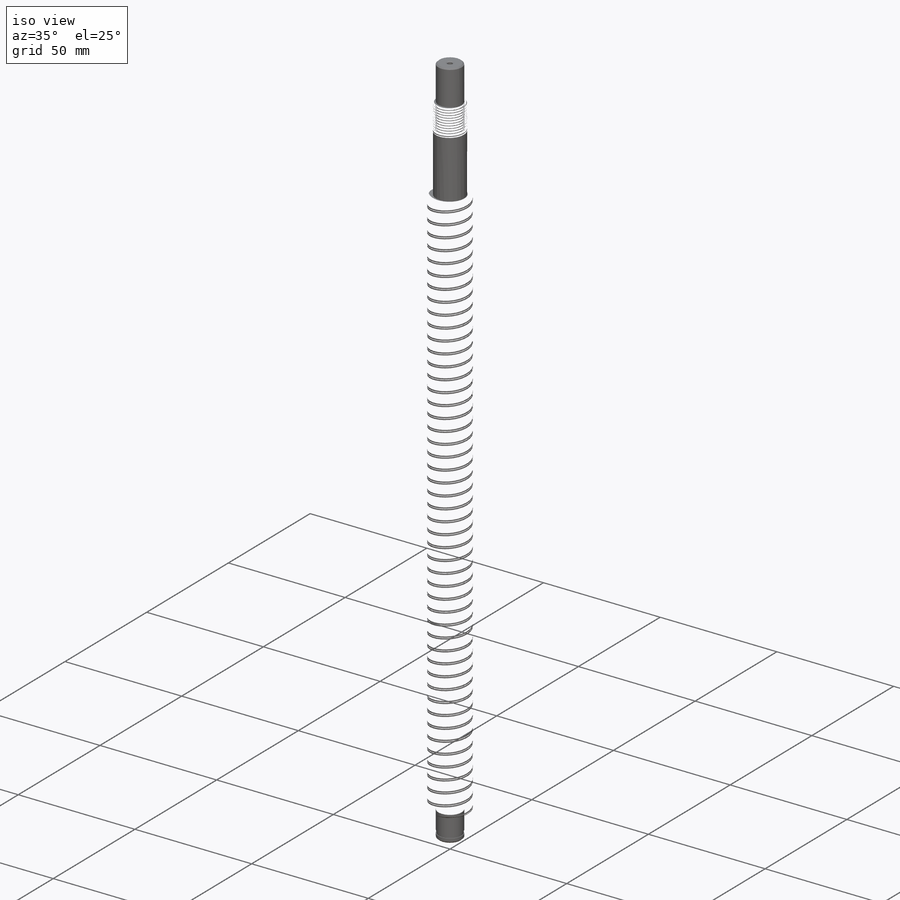
[diagram: iso view]
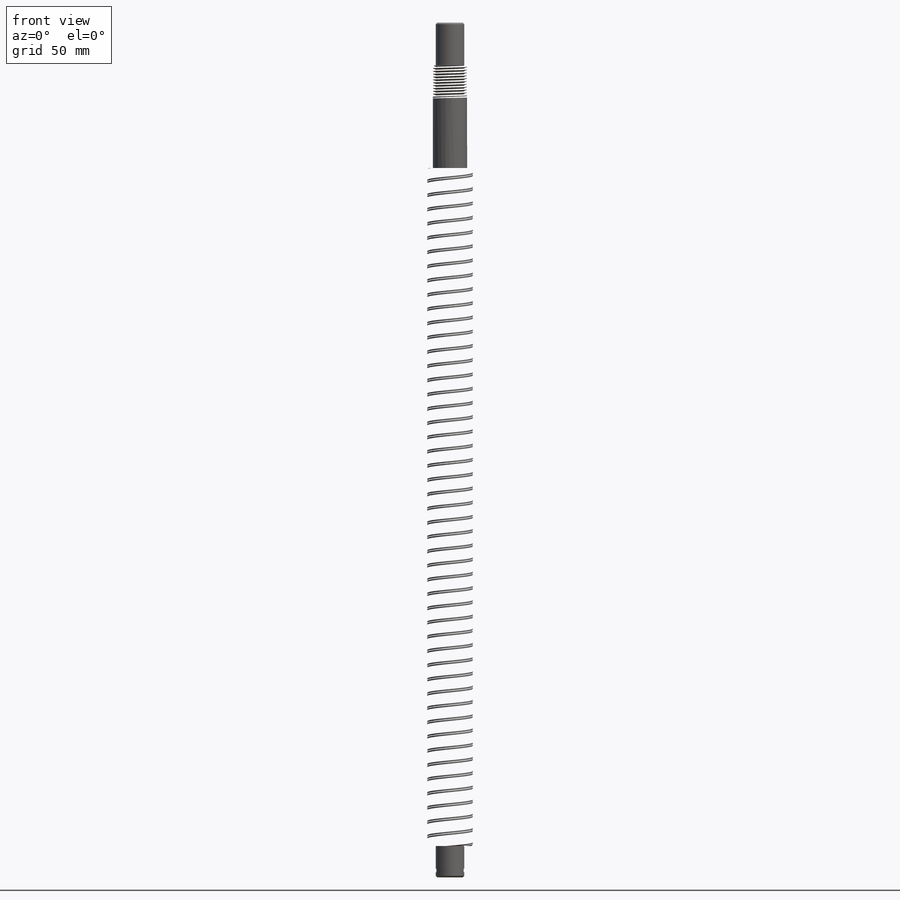
[diagram: front view]
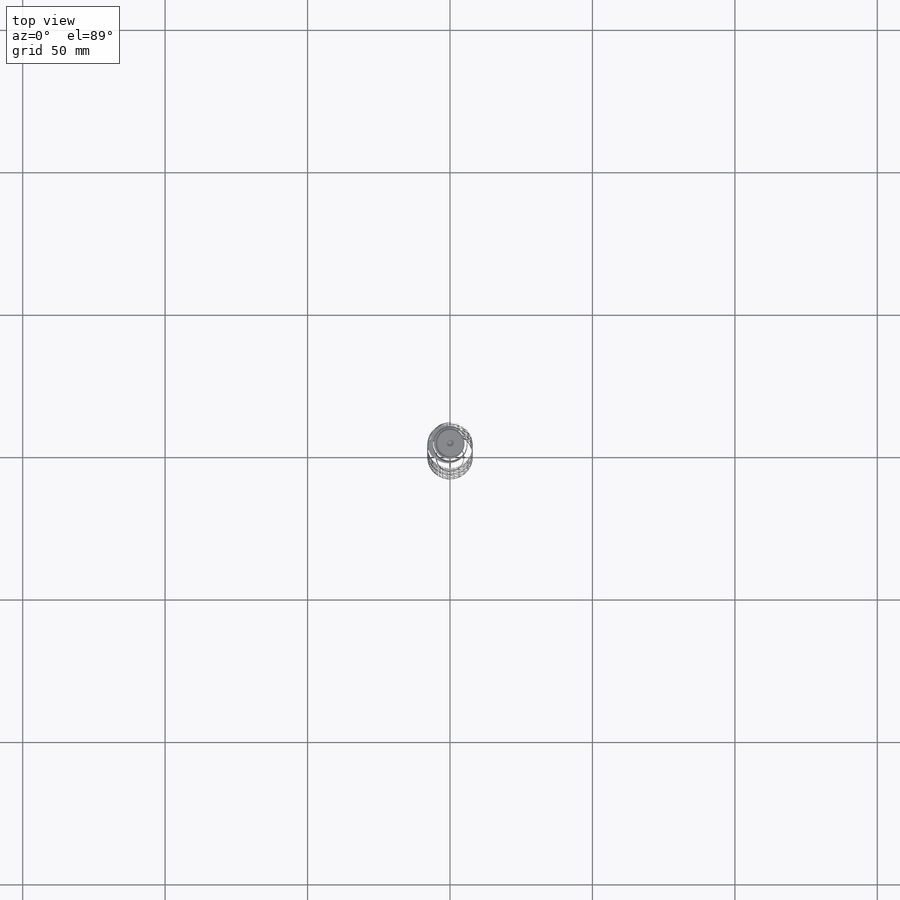
[diagram: top view]
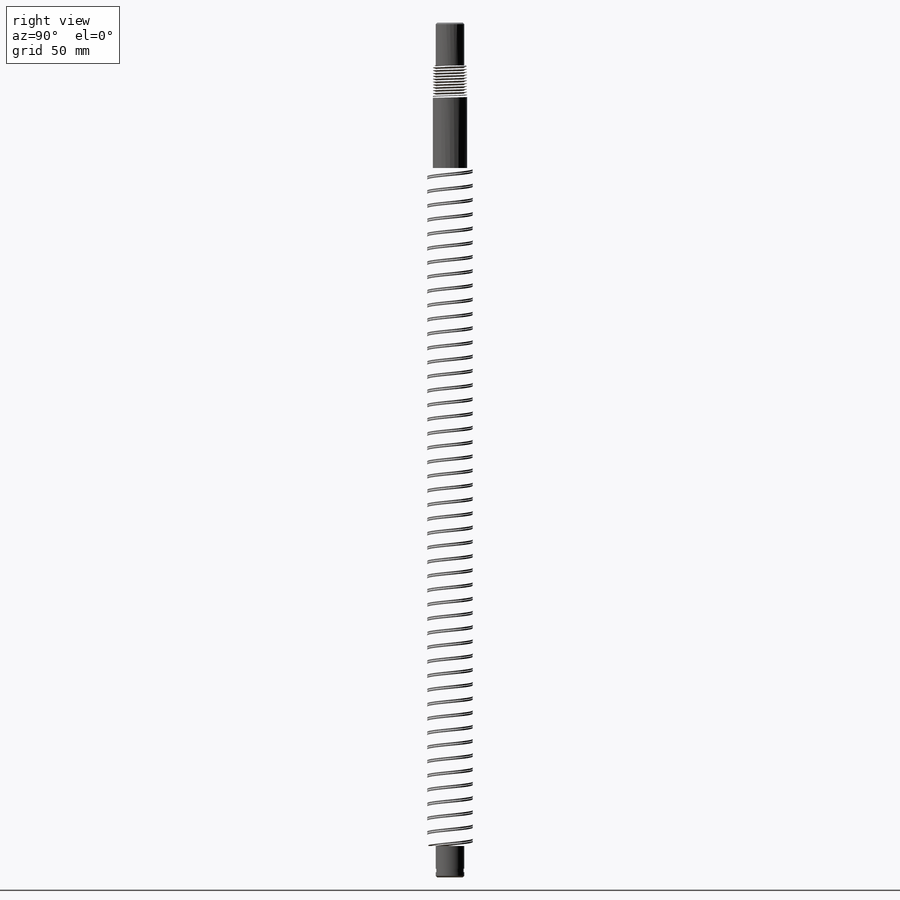
[diagram: right view]
SOLIDWORKS PART (.sldprt)
format: sldprt  version: not decoded by parser v0  size: 4,400,640 bytes
history: native  units: mm
features: sketch x7, plane x3, helix x3, sweep x3, chamfer x2, material x1, revolve x1 + 1 further entry (+13 scaffold rows collapsed)
feature tree (34):
  scaffold x13  (default folders/planes/origin — collapsed)
  material  "Chrome Stainless Steel"
  "Design Table"
  sketch  "Sketch1"  dims[Length=123.0mm D2=5.0mm D3=15.0mm D4=6.0mm D5=36.0mm D6=8.0mm D7=11.0mm D8=4.8mm D9=1.15mm D10=9.15mm D11=1.0mm D12=3.0mm D13=3.0mm]
  revolve  "Revolve1"  Angle=360deg
  chamfer  "Chamfer1"  Distance=0.5mm Angle=45deg
  chamfer  "Chamfer2"  Distance=0.5mm Angle=30deg
  plane  "Plane1"  Offset=14mm
  plane  "Plane2"  Offset=26mm
  plane  "Plane3"  Offset=48.25mm
  sketch  "Sketch4"  dims[D1=12.0mm]
  helix  "Helix/Spiral2"  Pitch=1mm
  sketch  "Sketch2"  dims[D1=12.0mm]
  helix  "Helix/Spiral1"  Pitch=12mm
  sketch  "Sketch3"  dims[D3=0.23mm D1=1.0mm D2=0.96mm]
  sweep  "Cut-Sweep1"
  sketch  "Sketch5"  dims[D1=0.0mm]
  sweep  "Cut-Sweep2"
  sketch  "Sketch6"  dims[D1=16.0mm]
  helix  "Helix/Spiral3"  Pitch=66mm Thread=66mm
  sketch  "Sketch7"  dims[c1.D2=3.8mm c1.D1=2.4mm c1.D3=0.2mm c1.D4=0.9mm c1.D5=1.645mm c2.D1=0.2mm c2.D3=0.9mm c2.D4=1.654mm c2.D5=1.645mm c2.D2=~48.254995mm c3.D3=2.4mm c3.D4=0.2mm c3.D5=0.9mm c4.D5=1.0mm c4.D6=~0.671419mm c4.D3=0.9mm c4.D4=0.9mm c5.D5=0.2mm c5.D6=2.4mm c5.D7=8.0mm]
  sweep  "Cut-Sweep3"
decode coverage: 13 of 16 modeling features carry decoded parameters; 1 rows unclassified (native names shown)
note: ~ marks probable driven/reference dimensions
note: suppression state not decoded; provenance and decode notes live in map.json
